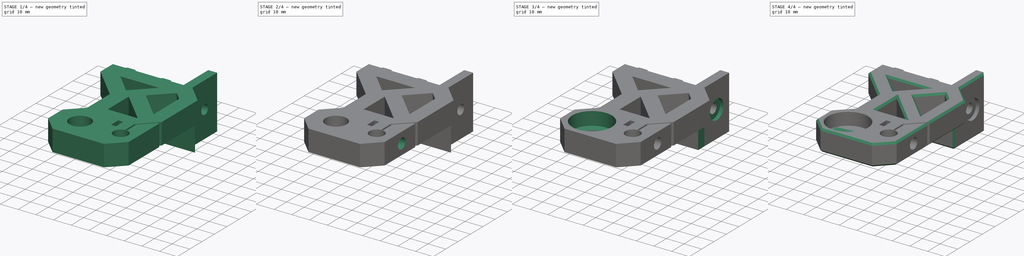
[diagram: build sequence overview — one tinted view per stage of 4, left to right]
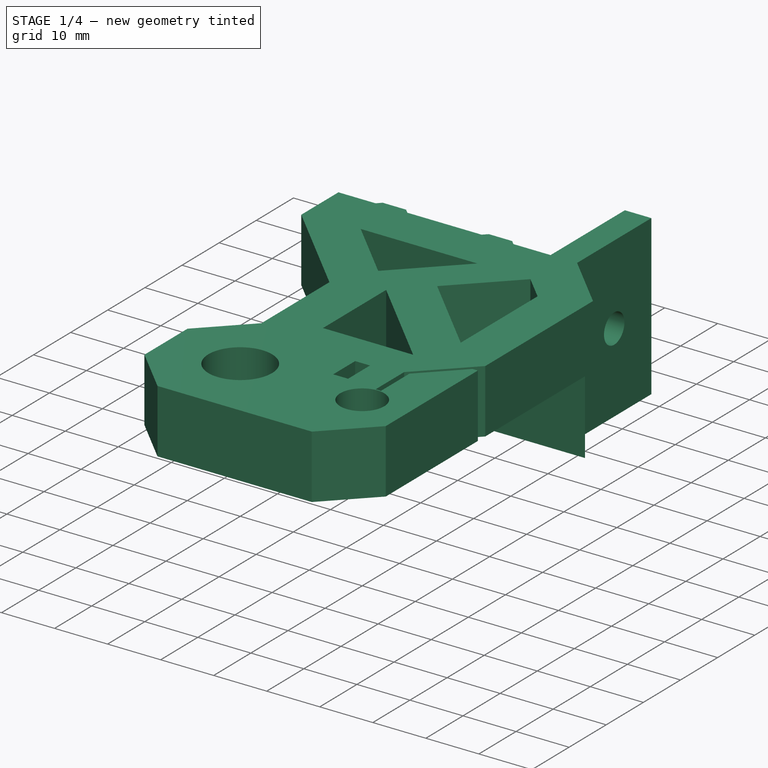
[diagram: stage 1 of 4 — iso view after this stage's code; geometry added in this stage tinted green]
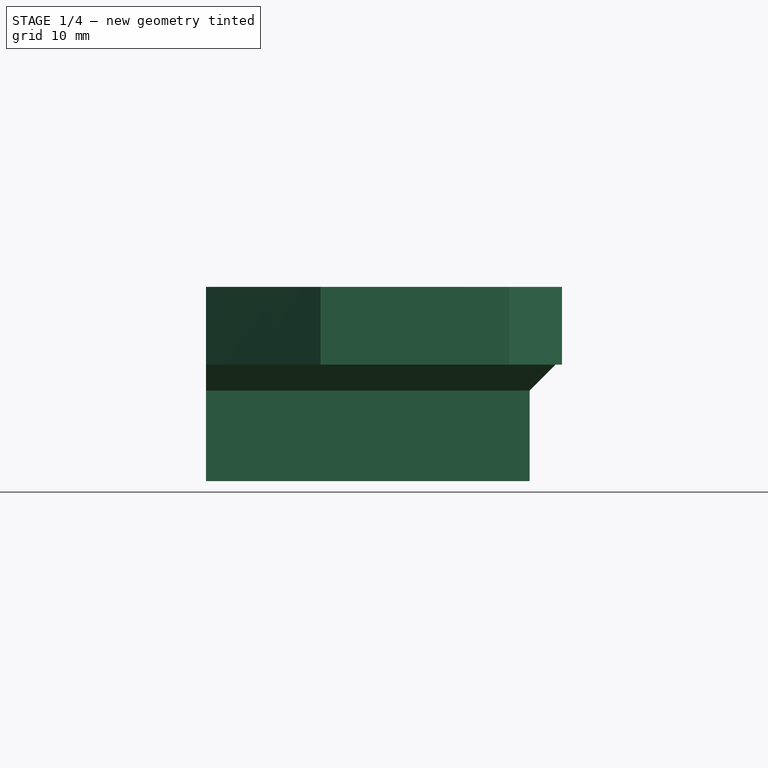
[diagram: stage 1 of 4 — front view after this stage's code; geometry added in this stage tinted green]
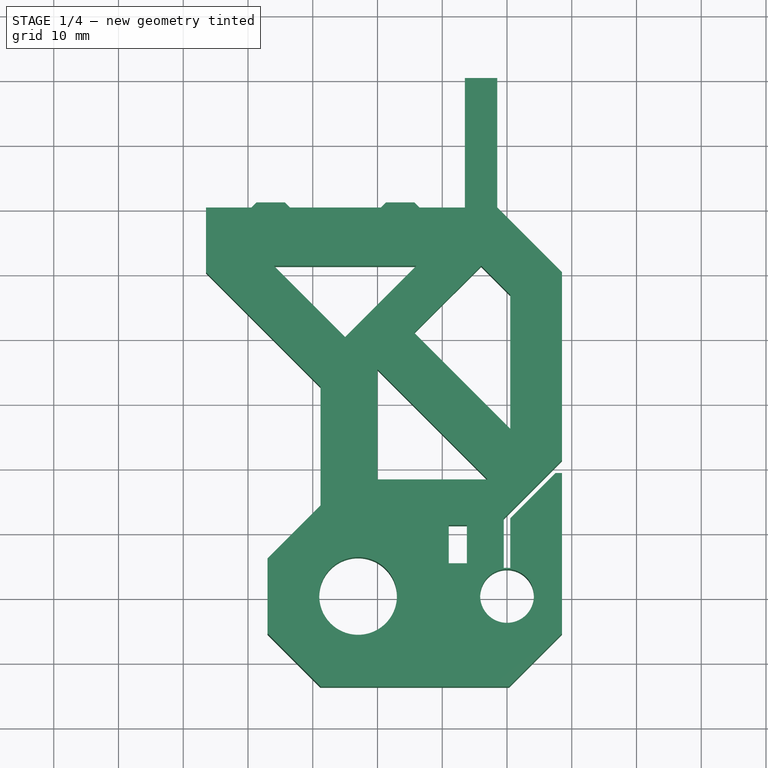
[diagram: stage 1 of 4 — top view after this stage's code; geometry added in this stage tinted green]
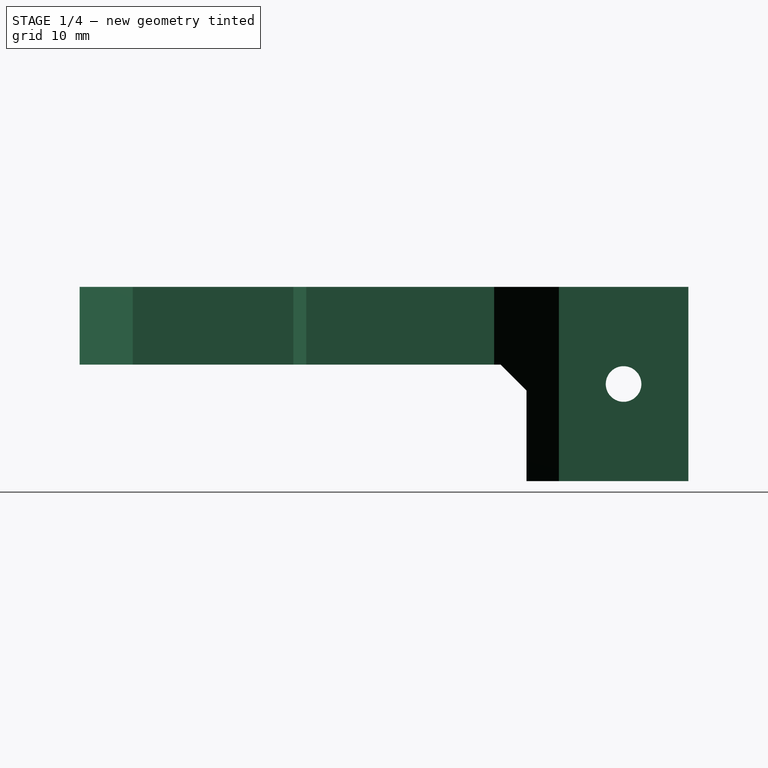
[diagram: stage 1 of 4 — right view after this stage's code; geometry added in this stage tinted green]
FCSTD DOCUMENT  (FreeCAD 0.19R24276 (Git))
Label: _Z_Rod_Holder_R
License: CreativeCommons Attribution
LicenseURL: http://creativecommons.org/licenses/by/4.0/
objects: Sketcher::SketchObject×11, PartDesign::Pocket×8, PartDesign::Pad×2, PartDesign::Chamfer×2, PartDesign::Hole×1, PartDesign::Body×1
note: 38 computed .brp shape members not serialized (recipe doc carries the construction recipe); baked Part::Feature solids carry a one-line shape summary decoded from their .brp

FEATURE [Sketcher::SketchObject] Sketch001  label="Sketch"
  FullyConstrained = true
  MapMode = 5
  Support = -> [XY_Plane]
  expr: Constraints[90] = Constraints[84] / 2 + 0.2mm
  sketch-geometry (37):
    g0: LineSegment StartX=-46.5 StartY=60 StartZ=0 EndX=-39.5 EndY=60 EndZ=0
    g1: LineSegment StartX=-6.5 StartY=60 StartZ=0 EndX=-6.5 EndY=80 EndZ=0
    g2: Circle CenterX=-23 CenterY=0 CenterZ=0 NormalX=0 NormalY=0 NormalZ=1 AngleXU=0 Radius=6
    g3: LineSegment StartX=-19.5 StartY=60 StartZ=0 EndX=-18.7 EndY=60.8 EndZ=0
    g4: LineSegment StartX=-18.7 StartY=60.8 StartZ=0 EndX=-14.3 EndY=60.8 EndZ=0
    g5: LineSegment StartX=-14.3 StartY=60.8 StartZ=0 EndX=-13.5 EndY=60 EndZ=0
    g6: LineSegment StartX=-39.5 StartY=60 StartZ=0 EndX=-38.7 EndY=60.8 EndZ=0
    g7: LineSegment StartX=-38.7 StartY=60.8 StartZ=0 EndX=-34.3 EndY=60.8 EndZ=0
    g8: LineSegment StartX=-34.3 StartY=60.8 StartZ=0 EndX=-33.5 EndY=60 EndZ=0
    g9: LineSegment StartX=-16.5 StartY=60.8 StartZ=0 EndX=-16.5 EndY=60 EndZ=0
    g10: LineSegment StartX=-36.5 StartY=60.8 StartZ=0 EndX=-36.5 EndY=60 EndZ=0
    g11: LineSegment StartX=-33.5 StartY=60 StartZ=0 EndX=-19.5 EndY=60 EndZ=0
    g12: LineSegment StartX=-13.5 StartY=60 StartZ=0 EndX=-6.5 EndY=60 EndZ=0
    g13: LineSegment StartX=-39.5 StartY=60 StartZ=0 EndX=-33.5 EndY=60 EndZ=0
    g14: LineSegment StartX=-19.5 StartY=60 StartZ=0 EndX=-13.5 EndY=60 EndZ=0
    g15: LineSegment StartX=-46.5 StartY=50 StartZ=0 EndX=-28.799 EndY=32.299 EndZ=0
    g16: LineSegment StartX=-37 StartY=5.79899 StartZ=0 EndX=-37 EndY=-5.79899 EndZ=0
    g17: LineSegment StartX=-46.5 StartY=60 StartZ=0 EndX=-46.5 EndY=50 EndZ=0
    g18: Circle CenterX=-23 CenterY=0 CenterZ=0 NormalX=0 NormalY=0 NormalZ=1 AngleXU=0 Radius=14
    g19: LineSegment StartX=-37 StartY=5.79899 StartZ=0 EndX=-28.799 EndY=14 EndZ=0
    g20: LineSegment StartX=-37 StartY=-5.79899 StartZ=0 EndX=-28.799 EndY=-14 EndZ=0
    g21: LineSegment StartX=-28.799 StartY=-14 StartZ=0 EndX=0.29899 EndY=-14 EndZ=0
    g22: LineSegment StartX=0.29899 StartY=-14 StartZ=0 EndX=8.5 EndY=-5.79899 EndZ=0
    g23: LineSegment StartX=-6.5 StartY=80 StartZ=0 EndX=-1.5 EndY=80 EndZ=0
    g24: LineSegment StartX=-1.5 StartY=80 StartZ=0 EndX=-1.5 EndY=60 EndZ=0
    g25: LineSegment StartX=-1.5 StartY=60 StartZ=0 EndX=8.5 EndY=50 EndZ=0
    g26: LineSegment StartX=8.5 StartY=50 StartZ=0 EndX=8.5 EndY=21 EndZ=0
    g27: LineSegment StartX=8.5 StartY=21 StartZ=0 EndX=-0.5 EndY=12 EndZ=0
    g28: LineSegment StartX=0.5 StartY=12 StartZ=0 EndX=7.5 EndY=19 EndZ=0
    g29: LineSegment StartX=-0.5 StartY=4.32117 StartZ=0 EndX=-0.5 EndY=12 EndZ=0
    g30: LineSegment StartX=0.5 StartY=4.32117 StartZ=0 EndX=0.5 EndY=12 EndZ=0
    g31: LineSegment StartX=8.5 StartY=19 StartZ=0 EndX=8.5 EndY=-5.79899 EndZ=0
    g32: LineSegment StartX=-0.5 StartY=12 StartZ=0 EndX=0.5 EndY=12 EndZ=0
    g33: Circle CenterX=0 CenterY=0 CenterZ=0 NormalX=0 NormalY=0 NormalZ=1 AngleXU=0 Radius=4.15
    g34: ArcOfCircle CenterX=0 CenterY=0 CenterZ=0 NormalX=0 NormalY=0 NormalZ=1 AngleXU=0 Radius=4.35 StartAngle=1.4556 EndAngle=1.68599
    g35: LineSegment StartX=7.5 StartY=19 StartZ=0 EndX=8.5 EndY=19 EndZ=0
    g36: LineSegment StartX=-28.799 StartY=32.299 StartZ=0 EndX=-28.799 EndY=14 EndZ=0
  constraints (103):
    c: Coincident(g12,g1)
    c: Horizontal(g0)
    c: Vertical(g1)
    c: PointOnObject(g2,g-1)
    c: Diameter(g2) = 12
    c: Coincident(g3,g4)
    c: Horizontal(g4)
    c: Coincident(g4,g5)
    c: Coincident(g6,g7)
    c: Horizontal(g7)
    c: Coincident(g7,g8)
    c: Coincident(g5,g12)
    c: Coincident(g3,g11)
    c: Coincident(g8,g11)
    c: Coincident(g6,g0)
    c: PointOnObject(g10,g11)
    c: PointOnObject(g9,g11)
    c: PointOnObject(g9,g4)
    c: PointOnObject(g10,g7)
    c: DistanceX(g9,g1) = 10
    c: DistanceX(g10,g9) = 20
    c: Symmetric(g3,g5,g9)
    c: Symmetric(g8,g0,g10)
    c: Horizontal(g12)
    c: Horizontal(g11)
    c: Symmetric(g6,g7,g10)
    c: Symmetric(g3,g4,g9)
    c: DistanceX(g0,g8) = 6
    c: Coincident(g13,g0)
    c: Coincident(g13,g8)
    c: Coincident(g14,g3)
    c: Coincident(g14,g5)
    c: Equal(g13,g14)
    c: Equal(g9,g10)
    c: DistanceY(g8,g7) = 0.8
    c: Perpendicular(g8,g6)
    c: Perpendicular(g5,g3)
    c: Vertical(g16)
    c: Coincident(g17,g15)
    c: Vertical(g17)
    c: Coincident(g0,g17)
    c: Angle(g15,g16) = 2.35619
    c: Coincident(g18,g2)
    c: Diameter(g18) = 28
    c: Coincident(g16,g19)
    c: Perpendicular(g19,g15)
    c: Tangent(g19,g18)
    c: Coincident(g16,g20)
    c: Tangent(g18,g20)
    c: Perpendicular(g20,g19)
    c: Tangent(g16,g18)
    c: Coincident(g20,g21)
    c: Horizontal(g21)
    c: Tangent(g21,g18)
    c: Coincident(g21,g22)
    c: Perpendicular(g22,g20)
    c: Equal(g20,g22)
    c: Horizontal(g23)
    c: Coincident(g23,g24)
    c: Vertical(g24)
    c: Coincident(g24,g25)
    c: Coincident(g25,g26)
    c: Coincident(g27,g26)
    c: DistanceX(g23,g23) = 5
    c: Coincident(g23,g1)
    c: Parallel(g15,g25)
    c: DistanceX(g15,g1) = 40
    c: DistanceY(g17,g17) = 10
    c: Vertical(g29)
    c: Vertical(g30)
    c: Coincident(g28,g30)
    c: Coincident(g27,g29)
    c: Vertical(g26)
    c: DistanceY(g1,g23) = 20
    c: Coincident(g31,g22)
    c: Vertical(g31)
    c: Parallel(g22,g28)
    c: Parallel(g28,g27)
    c: Coincident(g32,g27)
    c: Coincident(g32,g28)
    c: PointOnObject(g26,g31)
    c: DistanceY(g-1,g1) = 60
    c: DistanceX(g32,g32) = 1
    c: Coincident(g33,g-1)
    c: Diameter(g33) = 8.3
    c: DistanceY(g-1,g28) = 12
    c: Symmetric(g27,g28,g-2)
    c: Coincident(g34,g33)
    c: Coincident(g34,g29)
    c: Coincident(g34,g30)
    c: Radius(g34) = 4.35
    c: DistanceX(g-1,g22) = 8.5
    c: DistanceX(g2,g33) = 23
    c: DistanceX(g23,g-1) = 1.5
    c: Horizontal(g35)
    c: Coincident(g31,g35)
    c: Coincident(g28,g35)
    c: DistanceX(g35,g35) = 1
    c: Coincident(g36,g15)
    c: Coincident(g36,g19)
    c: Vertical(g36)
    c: Vertical(g20,g19)
    c: Horizontal(g24,g1)
FEATURE [PartDesign::Pad] Pad
  AllowMultiFace = false
  Direction = (1,1,1)
  Length = 30
  Length2 = 100
  Profile = -> Sketch001
  Reversed = true
  Type = 0
FEATURE [Sketcher::SketchObject] Sketch  label="Sketch002"
  AttachmentOffset = pos=(0,0,8.5) rot=(0,0,1;0rad)
  FullyConstrained = true
  MapMode = 5
  Placement = pos=(8.5,-1.9e-15,1.9e-15) rot=(0.57735,0.57735,0.57735;2.0944rad)
  Support = -> [YZ_Plane]
  sketch-geometry (6):
    g0: LineSegment StartX=55 StartY=-32 StartZ=0 EndX=55 EndY=-16 EndZ=0
    g1: LineSegment StartX=51 StartY=-12 StartZ=0 EndX=-15 EndY=-12 EndZ=0
    g2: LineSegment StartX=51 StartY=-12 StartZ=0 EndX=55 EndY=-16 EndZ=0
    g3: Circle CenterX=70 CenterY=-15 CenterZ=0 NormalX=0 NormalY=0 NormalZ=1 AngleXU=0 Radius=2.75
    g4: LineSegment StartX=55 StartY=-32 StartZ=0 EndX=-15 EndY=-32 EndZ=0
    g5: LineSegment StartX=-15 StartY=-32 StartZ=0 EndX=-15 EndY=-12 EndZ=0
  constraints (18):
    c: Horizontal(g1)
    c: Vertical(g0)
    c: Coincident(g0,g2)
    c: Coincident(g1,g2)
    c: Diameter(g3) = 5.5
    c: Coincident(g4,g5)
    c: Horizontal(g4)
    c: Vertical(g5)
    c: Coincident(g0,g4)
    c: DistanceY(g3,g-1) = 15
    c: DistanceY(g4,g-1) = 32
    c: DistanceX(g4,g-1) = 15
    c: DistanceX(g-1,g3) = 70
    c: DistanceX(g-1,g0) = 55
    c: DistanceY(g1,g-1) = 12
    c: Coincident(g1,g5)
    c: DistanceX(g2,g2) = 4
    c: Angle(g1,g2) = 2.35619
FEATURE [Sketcher::SketchObject] Sketch002  label="Sketch001"
  FullyConstrained = true
  MapMode = 5
  Support = -> [XY_Plane]
  sketch-geometry (16):
    g0: LineSegment StartX=-36 StartY=51 StartZ=0 EndX=-14 EndY=51 EndZ=0
    g1: LineSegment StartX=0.5 StartY=46.5 StartZ=0 EndX=0.5 EndY=25.8137 EndZ=0
    g2: LineSegment StartX=-3 StartY=18 StartZ=0 EndX=-20 EndY=18 EndZ=0
    g3: LineSegment StartX=-25 StartY=40 StartZ=0 EndX=-36 EndY=51 EndZ=0
    g4: LineSegment StartX=-9 StartY=8 StartZ=0 EndX=0 EndY=8 EndZ=0
    g5: LineSegment StartX=-9 StartY=10.95 StartZ=0 EndX=-6.2 EndY=10.95 EndZ=0
    g6: LineSegment StartX=-6.2 StartY=10.95 StartZ=0 EndX=-6.2 EndY=5.05 EndZ=0
    g7: LineSegment StartX=-6.2 StartY=5.05 StartZ=0 EndX=-9 EndY=5.05 EndZ=0
    g8: LineSegment StartX=-9 StartY=5.05 StartZ=0 EndX=-9 EndY=10.95 EndZ=0
    g9: LineSegment StartX=-20 StartY=18 StartZ=0 EndX=-20 EndY=35 EndZ=0
    g10: LineSegment StartX=-25 StartY=40 StartZ=0 EndX=-14 EndY=51 EndZ=0
    g11: LineSegment StartX=-14.3431 StartY=40.6569 StartZ=0 EndX=-4 EndY=51 EndZ=0
    g12: LineSegment StartX=0.5 StartY=25.8137 StartZ=0 EndX=-14.3431 EndY=40.6569 EndZ=0
    g13: LineSegment StartX=-3 StartY=18 StartZ=0 EndX=-20 EndY=35 EndZ=0
    g14: LineSegment StartX=-14.3431 StartY=40.6569 StartZ=0 EndX=-20 EndY=35 EndZ=0
    g15: LineSegment StartX=-4 StartY=51 StartZ=0 EndX=0.5 EndY=46.5 EndZ=0
  constraints (47):
    c: Vertical(g1)
    c: Coincident(g3,g0)
    c: Horizontal(g2)
    c: DistanceY(g-1,g0) = 51
    c: DistanceX(g-1,g1) = 0.5
    c: Angle(g3,g0) = 0.785398
    c: Horizontal(g0)
    c: DistanceX(g0,g-1) = 36
    c: DistanceX(g0,g0) = 22
    c: DistanceY(g-1,g2) = 18
    c: Horizontal(g4)
    c: Coincident(g5,g6)
    c: Coincident(g6,g7)
    c: Coincident(g7,g8)
    c: Coincident(g8,g5)
    c: Horizontal(g5)
    c: Horizontal(g7)
    c: Vertical(g8)
    c: Symmetric(g5,g6,g4)
    c: PointOnObject(g4,g8)
    c: PointOnObject(g4,g-2)
    c: DistanceY(g-1,g4) = 8
    c: DistanceY(g8,g8) = 5.9
    c: DistanceX(g5,g5) = 2.8
    c: DistanceX(g7,g-1) = 9
    c: DistanceX(g2,g-1) = 20
    c: Coincident(g9,g2)
    c: Vertical(g9)
    c: Coincident(g10,g0)
    c: Coincident(g3,g10)
    c: Coincident(g12,g1)
    c: Coincident(g13,g2)
    c: Parallel(g12,g13)
    c: Coincident(g11,g12)
    c: Coincident(g9,g13)
    c: Coincident(g14,g11)
    c: PointOnObject(g14,g11)
    c: Coincident(g9,g14)
    c: Distance(g14) = 8
    c: PointOnObject(g9,g3)
    c: Perpendicular(g14,g13)
    c: PointOnObject(g2,g3)
    c: Coincident(g15,g11)
    c: Coincident(g15,g1)
    c: Perpendicular(g15,g11)
    c: Parallel(g11,g10)
    c: Horizontal(g11,g0)
FEATURE [PartDesign::Pocket] Pocket001  label="Pocket"
  AllowMultiFace = false
  BaseFeature = -> Pad
  Length = 5
  Length2 = 100
  Profile = -> Sketch002
  Type = 1
FEATURE [PartDesign::Pocket] Pocket  label="Pocket001"
  AllowMultiFace = false
  BaseFeature = -> Pocket001
  Length = 5
  Length2 = 100
  Profile = -> Sketch
  Type = 1
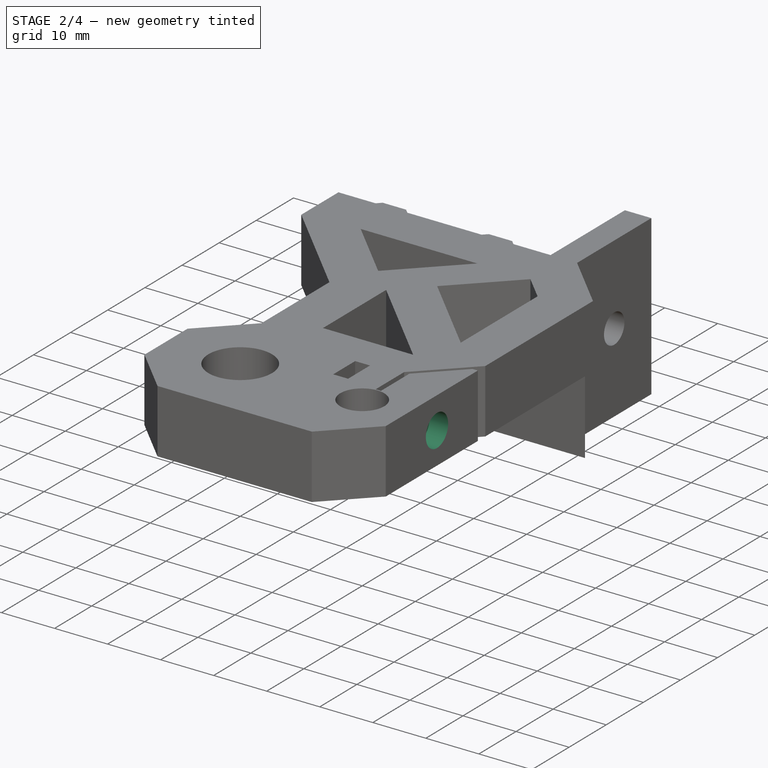
[diagram: stage 2 of 4 — iso view after this stage's code; geometry added in this stage tinted green]
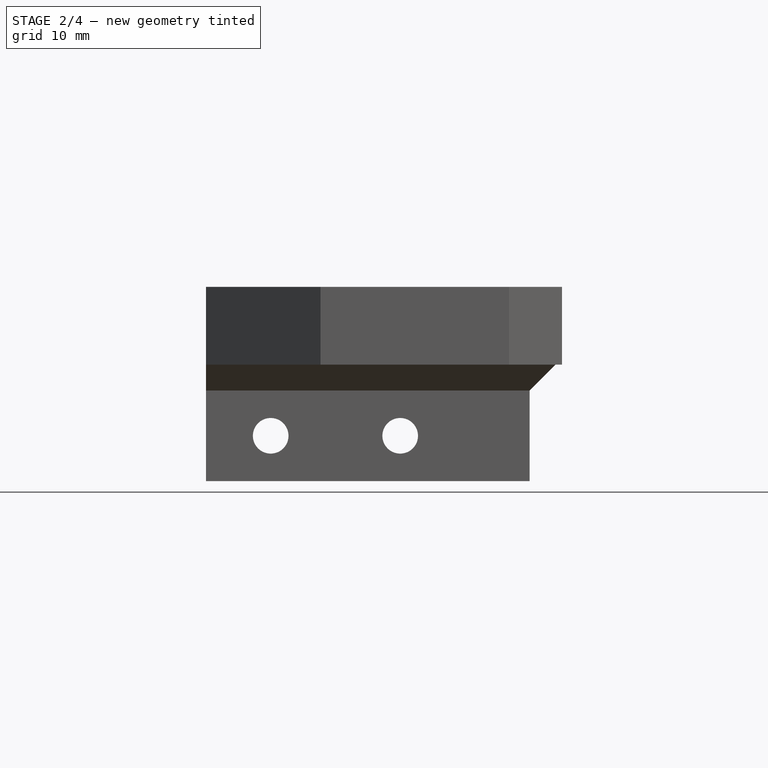
[diagram: stage 2 of 4 — front view after this stage's code; geometry added in this stage tinted green]
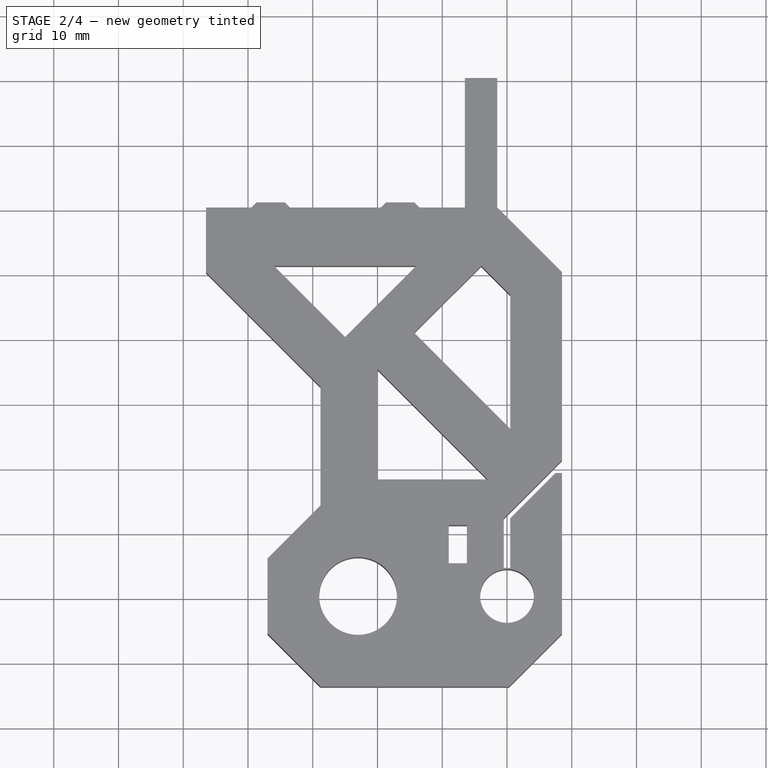
[diagram: stage 2 of 4 — top view after this stage's code; geometry added in this stage tinted green]
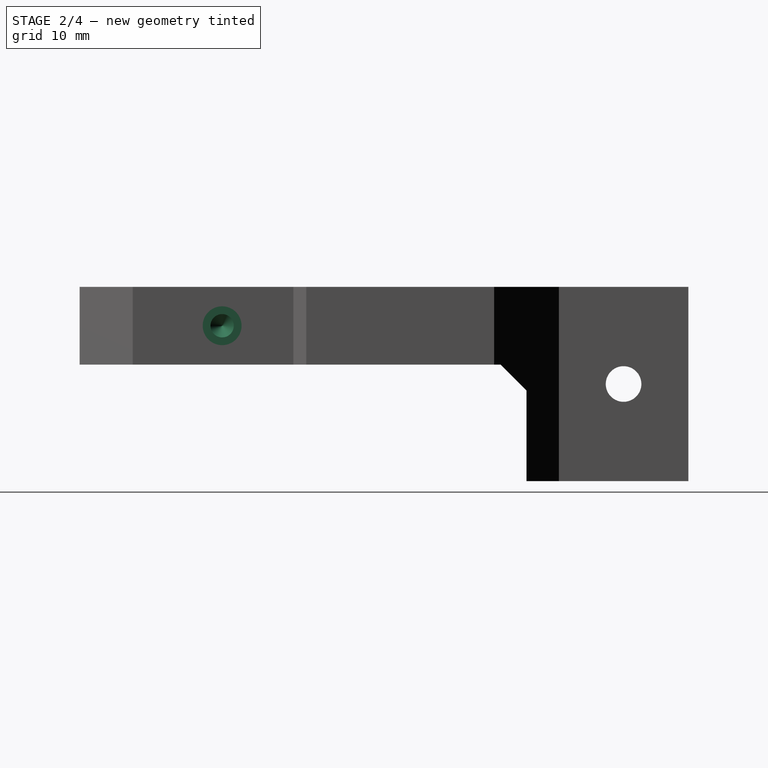
[diagram: stage 2 of 4 — right view after this stage's code; geometry added in this stage tinted green]
FEATURE [Sketcher::SketchObject] Sketch004
  AttachmentOffset = pos=(0,0,8.5) rot=(0,0,1;0rad)
  FullyConstrained = true
  MapMode = 5
  Placement = pos=(8.5,-1.9e-15,1.9e-15) rot=(0.57735,0.57735,0.57735;2.0944rad)
  Support = -> [YZ_Plane]
  sketch-geometry (1):
    g0: Circle CenterX=8 CenterY=-6 CenterZ=0 NormalX=0 NormalY=0 NormalZ=1 AngleXU=0 Radius=1.75
  constraints (3):
    c: DistanceY(g0,g-1) = 6
    c: DistanceX(g-1,g0) = 8
    c: Diameter(g0) = 3.5
FEATURE [Sketcher::SketchObject] Sketch005
  AttachmentOffset = pos=(0,0,8.5) rot=(0,0,1;0rad)
  FullyConstrained = true
  MapMode = 5
  Placement = pos=(8.5,-1.9e-15,1.9e-15) rot=(0.57735,0.57735,0.57735;2.0944rad)
  Support = -> [YZ_Plane]
  sketch-geometry (1):
    g0: Circle CenterX=8 CenterY=-6 CenterZ=0 NormalX=0 NormalY=0 NormalZ=1 AngleXU=0 Radius=3
  constraints (3):
    c: DistanceX(g-1,g0) = 8
    c: DistanceY(g0,g-1) = 6
    c: Diameter(g0) = 6
FEATURE [Sketcher::SketchObject] Sketch006
  AttachmentOffset = pos=(0,0,-55) rot=(0,0,1;0rad)
  FullyConstrained = true
  MapMode = 5
  Placement = pos=(0,55,1.22e-14) rot=(1,0,0;1.5708rad)
  Support = -> [XZ_Plane]
  sketch-geometry (3):
    g0: LineSegment StartX=-46.5 StartY=-23 StartZ=0 EndX=-16.5 EndY=-23 EndZ=0
    g1: Circle CenterX=-36.5 CenterY=-23 CenterZ=0 NormalX=0 NormalY=0 NormalZ=1 AngleXU=0 Radius=2.75
    g2: Circle CenterX=-16.5 CenterY=-23 CenterZ=0 NormalX=0 NormalY=0 NormalZ=1 AngleXU=0 Radius=2.75
  constraints (9):
    c: Horizontal(g0)
    c: DistanceY(g0,g-1) = 23
    c: DistanceX(g0,g-1) = 46.5
    c: PointOnObject(g1,g0)
    c: DistanceX(g1,g2) = 20
    c: DistanceX(g0,g1) = 10
    c: Equal(g1,g2)
    c: Diameter(g2) = 5.5
    c: Coincident(g0,g2)
FEATURE [Sketcher::SketchObject] Sketch007
  AttachmentOffset = pos=(0,0,-55) rot=(0,0,1;0rad)
  FullyConstrained = true
  MapMode = 5
  Placement = pos=(0,55,1.22e-14) rot=(1,0,0;1.5708rad)
  Support = -> [XZ_Plane]
  sketch-geometry (3):
    g0: Circle CenterX=-36.5 CenterY=-23 CenterZ=0 NormalX=0 NormalY=0 NormalZ=1 AngleXU=0 Radius=5.5
    g1: Circle CenterX=-16.5 CenterY=-23 CenterZ=0 NormalX=0 NormalY=0 NormalZ=1 AngleXU=0 Radius=5.5
    g2: LineSegment StartX=-36.5 StartY=-23 StartZ=0 EndX=-16.5 EndY=-23 EndZ=0
  constraints (8):
    c: Equal(g0,g1)
    c: Diameter(g1) = 11
    c: Coincident(g2,g0)
    c: Coincident(g2,g1)
    c: Horizontal(g2)
    c: DistanceX(g0,g-1) = 36.5
    c: DistanceX(g2,g2) = 20
    c: DistanceY(g1,g-1) = 23
FEATURE [PartDesign::Hole] Hole
  AllowMultiFace = false
  BaseFeature = -> Pocket
  Depth = 20
  DepthType = 0
  Diameter = 3.6
  DrillForDepth = false
  DrillPoint = 1
  DrillPointAngle = 90
  HoleCutCountersinkAngle = 90
  HoleCutCustomValues = false
  HoleCutDepth = 0
  HoleCutDiameter = 3.7
  HoleCutType = 0
  ModelActualThread = false
  Profile = -> Sketch004
  Tapered = false
  TaperedAngle = 90
  ThreadAngle = 0
  ThreadClass = 0
  ThreadCutOffInner = 0
  ThreadCutOffOuter = 0
  ThreadDirection = 0
  ThreadFit = 0
  ThreadPitch = 0
  ThreadSize = 0
  ThreadType = 0
  Threaded = false
FEATURE [PartDesign::Pocket] Pocket002
  AllowMultiFace = false
  BaseFeature = -> Hole
  Length = 3.5
  Length2 = 100
  Profile = -> Sketch005
  Type = 0
FEATURE [PartDesign::Pocket] Pocket003
  AllowMultiFace = false
  BaseFeature = -> Pocket002
  Length = 5
  Length2 = 100
  Profile = -> Sketch006
  Type = 1
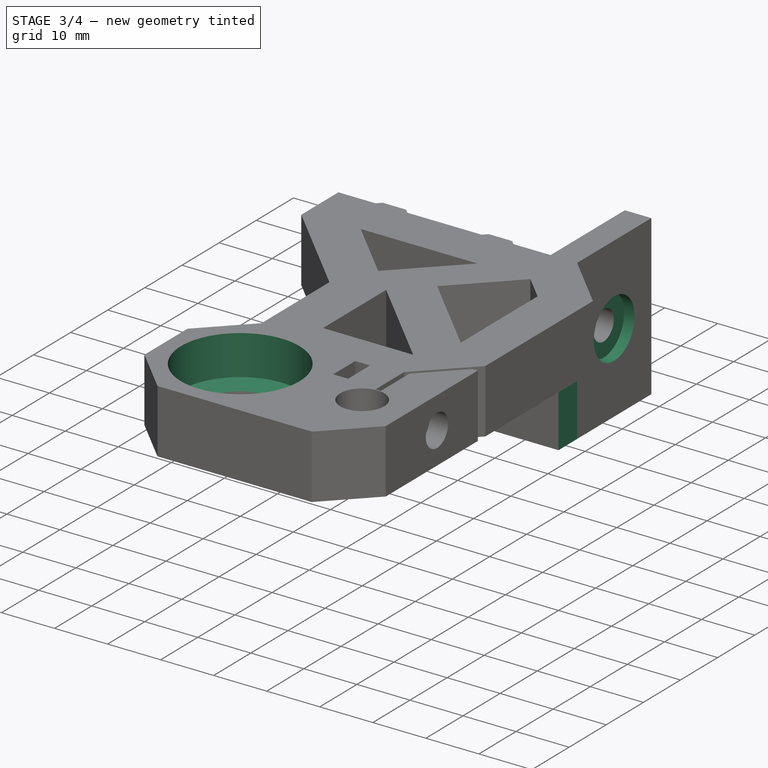
[diagram: stage 3 of 4 — iso view after this stage's code; geometry added in this stage tinted green]
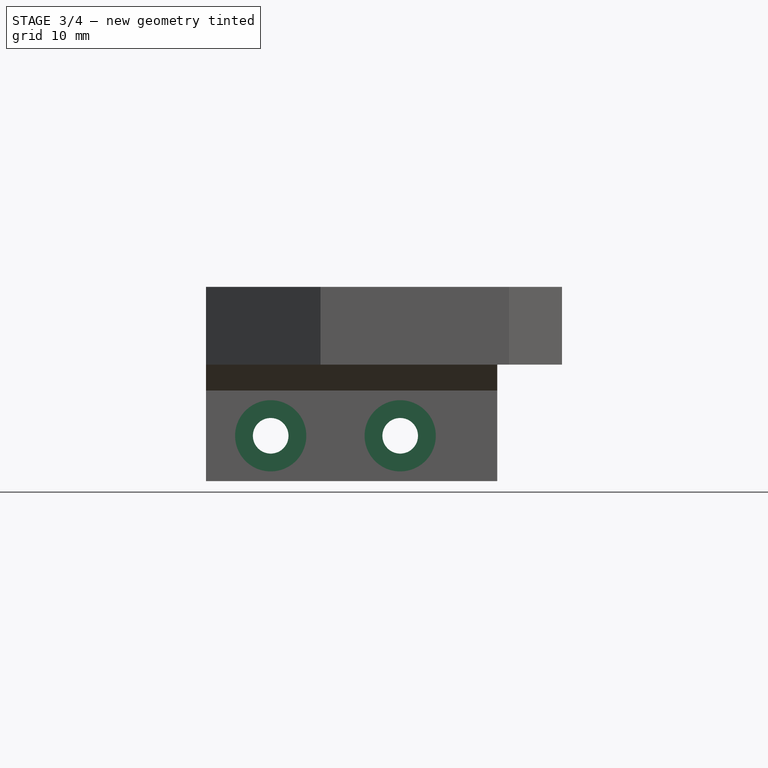
[diagram: stage 3 of 4 — front view after this stage's code; geometry added in this stage tinted green]
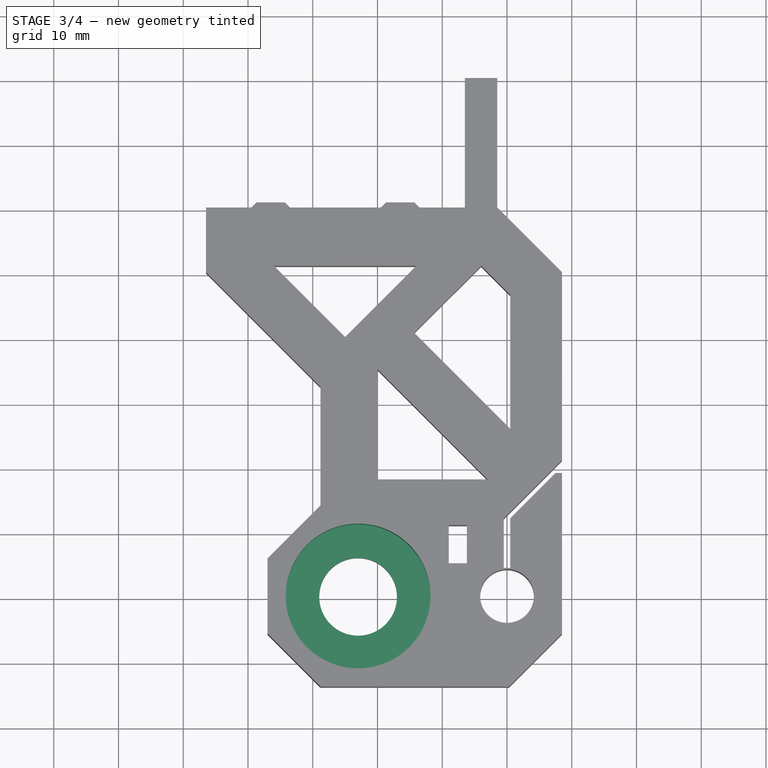
[diagram: stage 3 of 4 — top view after this stage's code; geometry added in this stage tinted green]
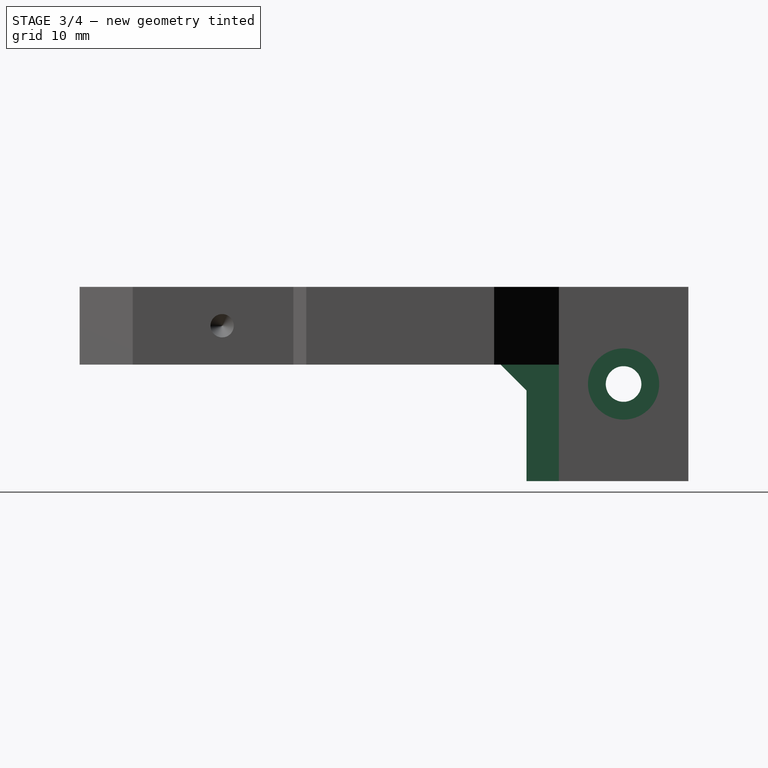
[diagram: stage 3 of 4 — right view after this stage's code; geometry added in this stage tinted green]
FEATURE [PartDesign::Pocket] Pocket004
  AllowMultiFace = false
  BaseFeature = -> Pocket003
  Length = 2
  Length2 = 100
  Profile = -> Sketch007
  Type = 0
FEATURE [Sketcher::SketchObject] Sketch008
  AttachmentOffset = pos=(0,0,-1.5) rot=(0,0,1;0rad)
  ExternalGeometry = -> [Pocket004]
  FullyConstrained = true
  MapMode = 5
  Placement = pos=(-1.5,3e-16,-3e-16) rot=(0.57735,0.57735,0.57735;2.0944rad)
  Support = -> [YZ_Plane]
  sketch-geometry (1):
    g0: Circle CenterX=70 CenterY=-15 CenterZ=0 NormalX=0 NormalY=0 NormalZ=1 AngleXU=0 Radius=5.5
  constraints (2):
    c: Diameter(g0) = 11
    c: Coincident(g0,g-3)
FEATURE [PartDesign::Pocket] Pocket005
  AllowMultiFace = false
  BaseFeature = -> Pocket004
  Length = 2
  Length2 = 100
  Profile = -> Sketch008
  Type = 0
FEATURE [Sketcher::SketchObject] Sketch010
  FullyConstrained = true
  MapMode = 5
  Support = -> [XY_Plane]
  sketch-geometry (1):
    g0: Circle CenterX=-23 CenterY=0 CenterZ=0 NormalX=0 NormalY=0 NormalZ=1 AngleXU=0 Radius=11.175
  constraints (3):
    c: PointOnObject(g0,g-1)
    c: DistanceX(g0,g-1) = 23
    c: Diameter(g0) = 22.35
FEATURE [PartDesign::Pocket] Pocket006
  AllowMultiFace = false
  BaseFeature = -> Pocket005
  Length = 7.5
  Length2 = 100
  Profile = -> Sketch010
  Type = 0
FEATURE [Sketcher::SketchObject] Sketch011
  AttachmentOffset = pos=(0,0,-30) rot=(1,0,0;3.14159rad)
  FullyConstrained = true
  MapMode = 5
  Placement = pos=(0,0,-30) rot=(1,0,0;3.14159rad)
  Support = -> [XY_Plane]
  sketch-geometry (4):
    g0: LineSegment StartX=-1.5 StartY=-60 StartZ=0 EndX=8.5 EndY=-60 EndZ=0
    g1: LineSegment StartX=8.5 StartY=-60 StartZ=0 EndX=8.5 EndY=-51 EndZ=0
    g2: LineSegment StartX=8.5 StartY=-51 StartZ=0 EndX=-1.5 EndY=-51 EndZ=0
    g3: LineSegment StartX=-1.5 StartY=-51 StartZ=0 EndX=-1.5 EndY=-60 EndZ=0
  constraints (12):
    c: Coincident(g0,g1)
    c: Coincident(g1,g2)
    c: Coincident(g2,g3)
    c: Coincident(g3,g0)
    c: Horizontal(g0)
    c: Horizontal(g2)
    c: Vertical(g1)
    c: Vertical(g3)
    c: DistanceX(g0,g-1) = 1.5
    c: DistanceY(g0,g-1) = 60
    c: DistanceY(g1,g1) = 9
    c: DistanceX(g2,g2) = 10
FEATURE [PartDesign::Pocket] Pocket007
  AllowMultiFace = false
  BaseFeature = -> Pocket006
  Length = 18
  Length2 = 100
  Profile = -> Sketch011
  Type = 0
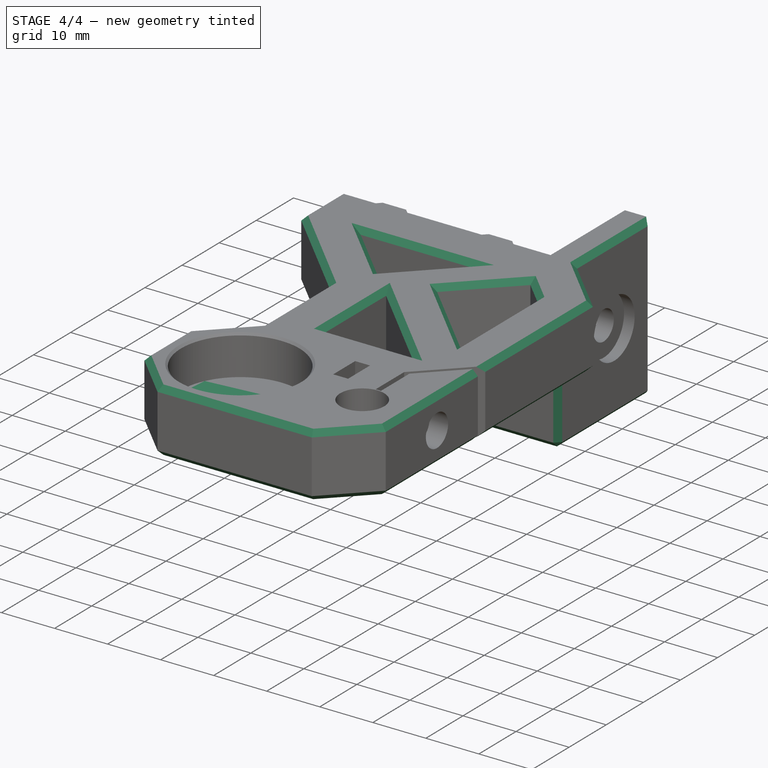
[diagram: stage 4 of 4 — iso view after this stage's code; geometry added in this stage tinted green]
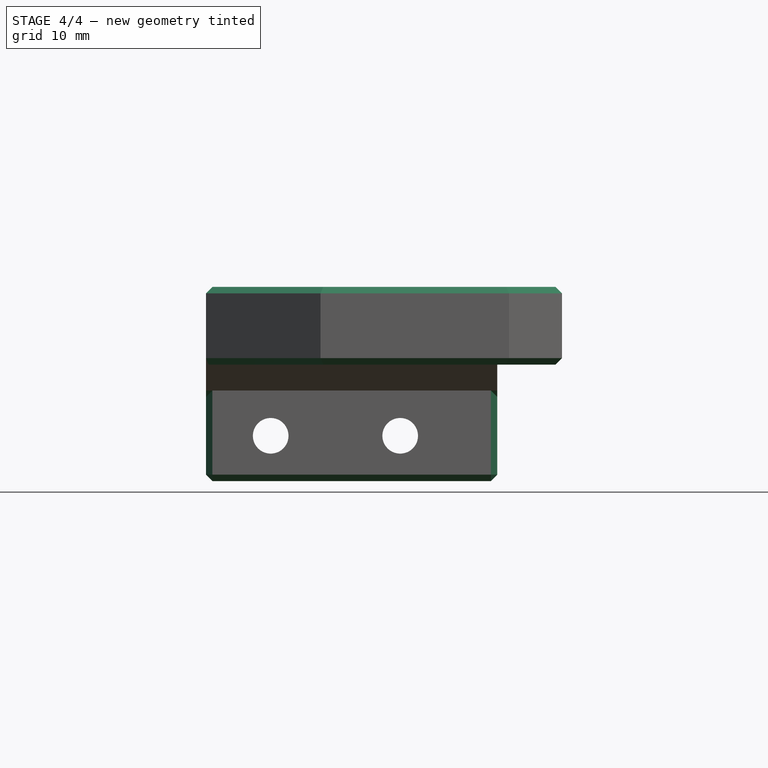
[diagram: stage 4 of 4 — front view after this stage's code; geometry added in this stage tinted green]
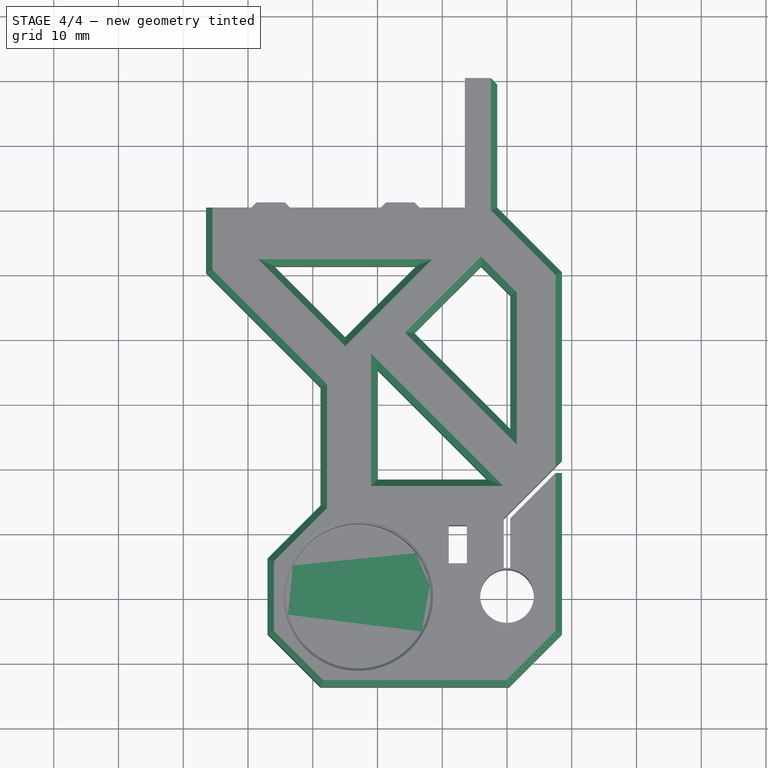
[diagram: stage 4 of 4 — top view after this stage's code; geometry added in this stage tinted green]
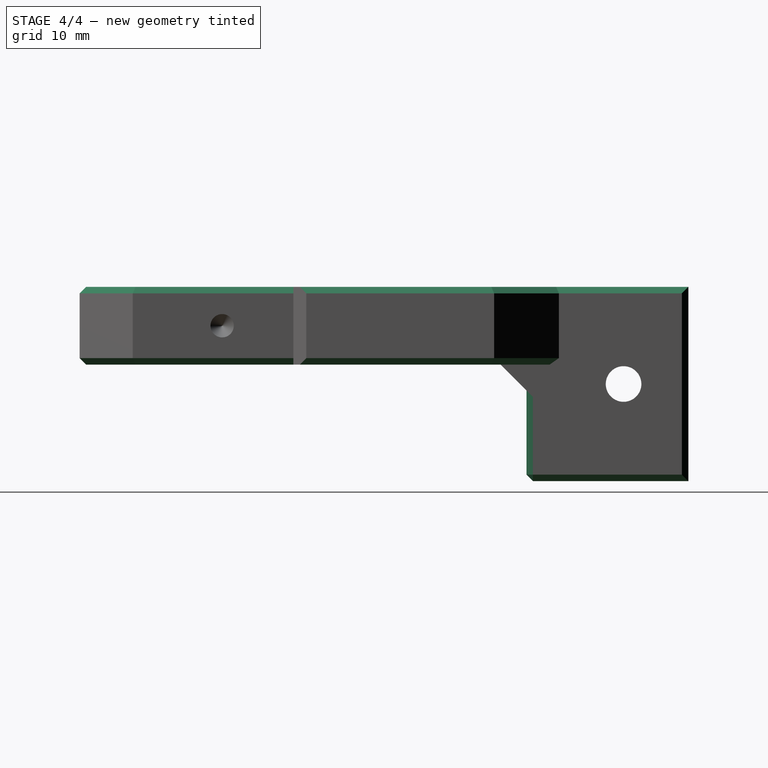
[diagram: stage 4 of 4 — right view after this stage's code; geometry added in this stage tinted green]
FEATURE [Sketcher::SketchObject] Sketch012
  AttachmentOffset = pos=(0,0,-7.5) rot=(0,0,1;0rad)
  FullyConstrained = true
  MapMode = 5
  Placement = pos=(0,0,-7.5) rot=(0,0,1;0rad)
  Support = -> [XY_Plane]
  sketch-geometry (1):
    g0: Circle CenterX=-23 CenterY=0 CenterZ=0 NormalX=0 NormalY=0 NormalZ=1 AngleXU=0 Radius=6.5
  constraints (3):
    c: PointOnObject(g0,g-1)
    c: DistanceX(g0,g-1) = 23
    c: Diameter(g0) = 13
FEATURE [PartDesign::Pad] Pad001  label="3DOpti"
  BaseFeature = -> Pocket007
  Direction = (1,1,1)
  Length = 0.2
  Length2 = 100
  Profile = -> Sketch012
  Refine = true
  Reversed = true
  Type = 0
FEATURE [PartDesign::Chamfer] Chamfer
  Angle = 45
  Base = -> Pad001 [Edge63,Edge123,Edge39,Edge41,Edge43,Edge32,Edge30,Edge28,Edge26,Edge24,Edge22,Edge20,Edge9,Edge59,Edge61,Edge60,Edge58,Edge57,Edge55,Edge56,Edge53,Edge52,Edge54,Edge34,Edge130,Edge135,Edge117,Edge114,Edge108,Edge104,Edge99,Edge95,Edge93,Edge74,Edge13,Edge14,Edge81,Edge62]
  BaseFeature = -> Pad001
  ChamferType = 0
  FlipDirection = false
  Refine = true
  Size = 1
  Size2 = 1
  SupportTransform = false
FEATURE [PartDesign::Chamfer] Chamfer001
  Angle = 45
  Base = -> Chamfer [Edge49,Edge214]
  BaseFeature = -> Chamfer
  ChamferType = 0
  FlipDirection = false
  Refine = true
  Size = 0.4
  Size2 = 1
  SupportTransform = false
FEATURE [PartDesign::Body] Body  label="Z-Rod_Holder_R"
  Group = -> [Sketch001,Pad,Sketch,Sketch002,Pocket001,Pocket,Sketch004,Sketch005,Sketch006,Sketch007,Sketch008,Hole,Pocket002,Pocket003,Pocket004,Pocket005,Sketch010,Pocket006,Sketch011,Pocket007,Sketch012,Pad001,Chamfer,Chamfer001]
  Origin = -> Origin
  Tip = -> Chamfer001
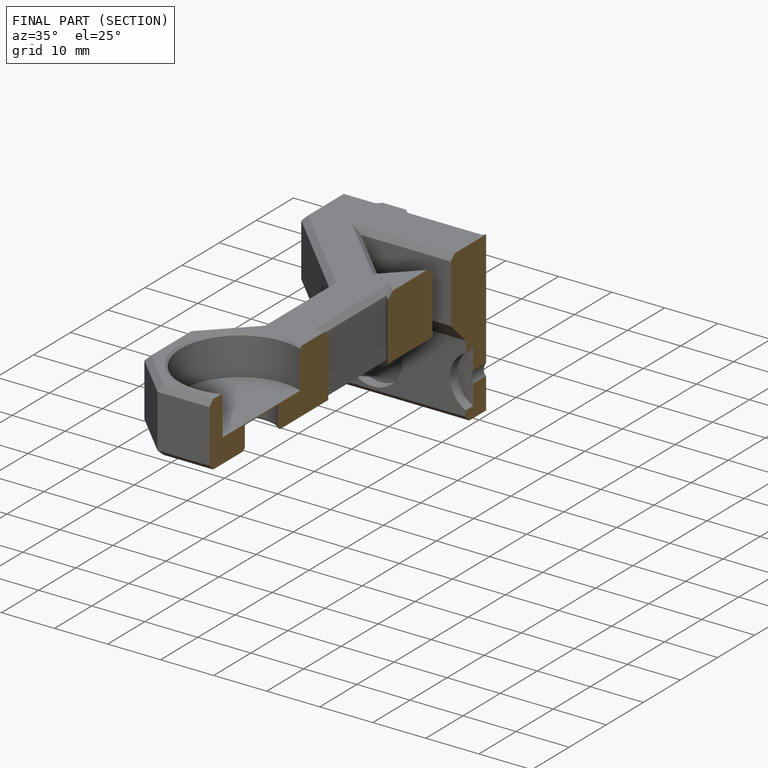
[diagram: finished part — half-section view (interior)]
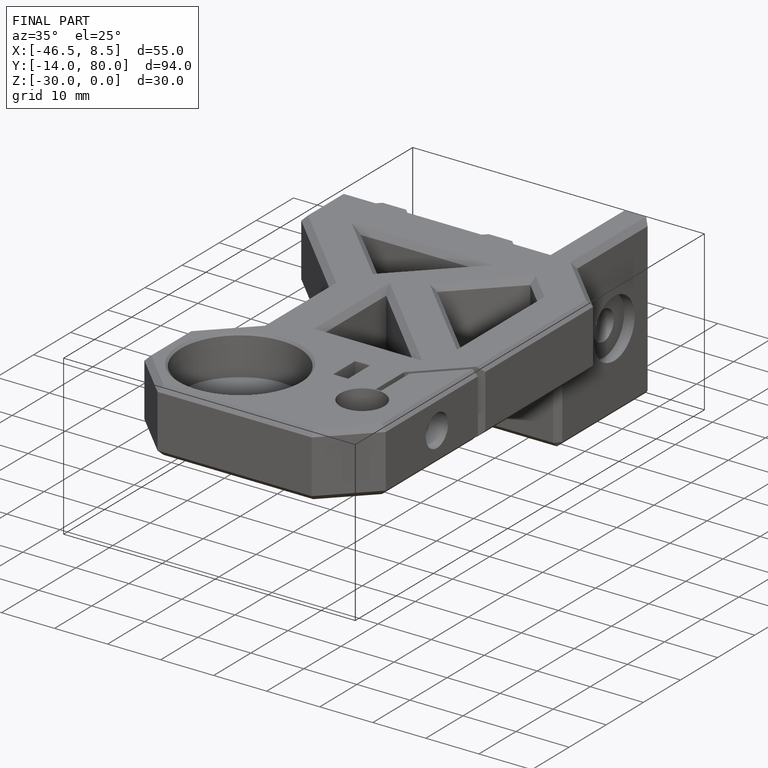
[diagram: finished part — iso view with bounding-box wireframe]
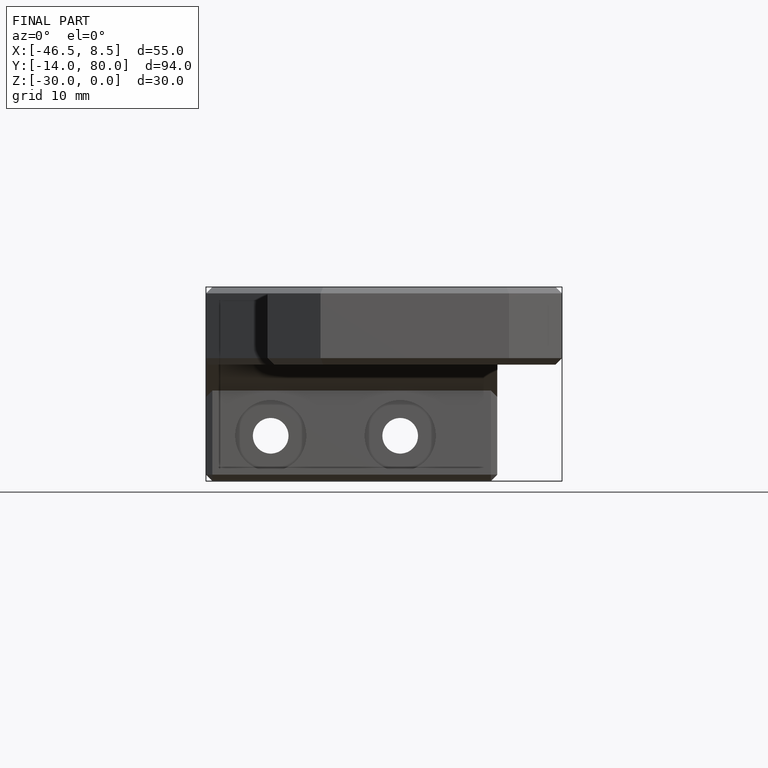
[diagram: finished part — front view with bounding-box wireframe]
